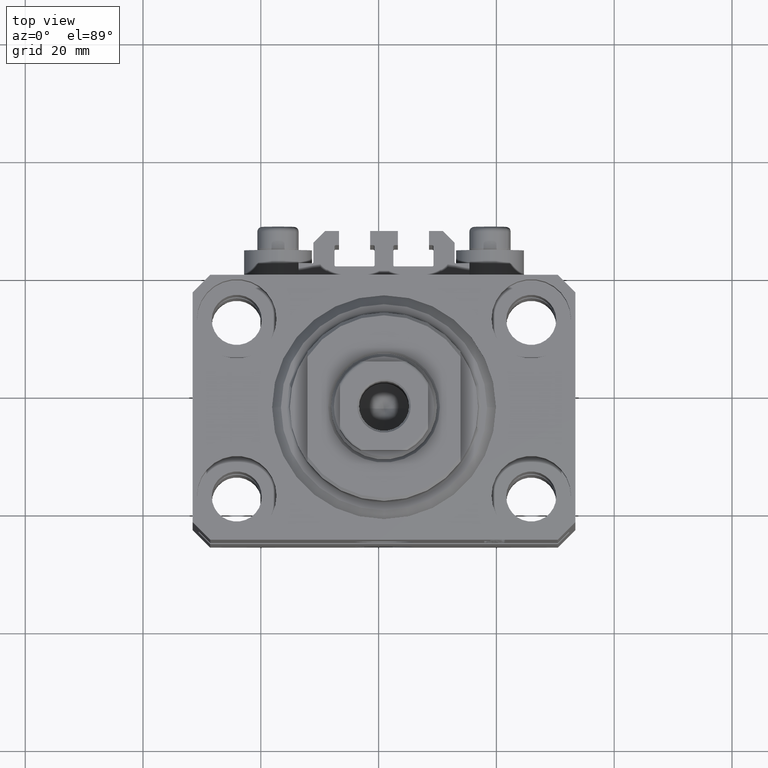
[diagram: clean part render]
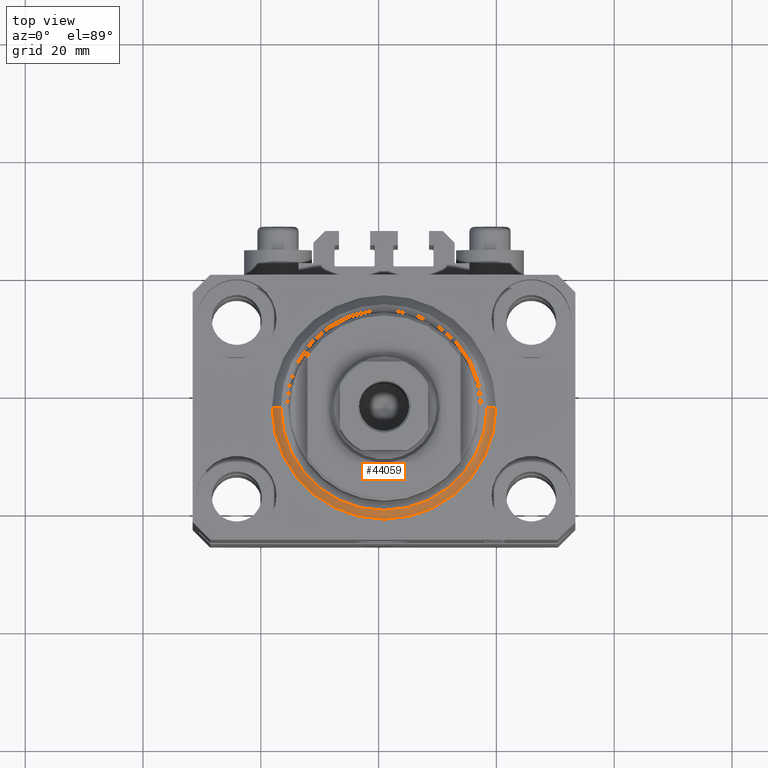
[diagram: same view with one face highlighted and labeled with its STEP entity id]
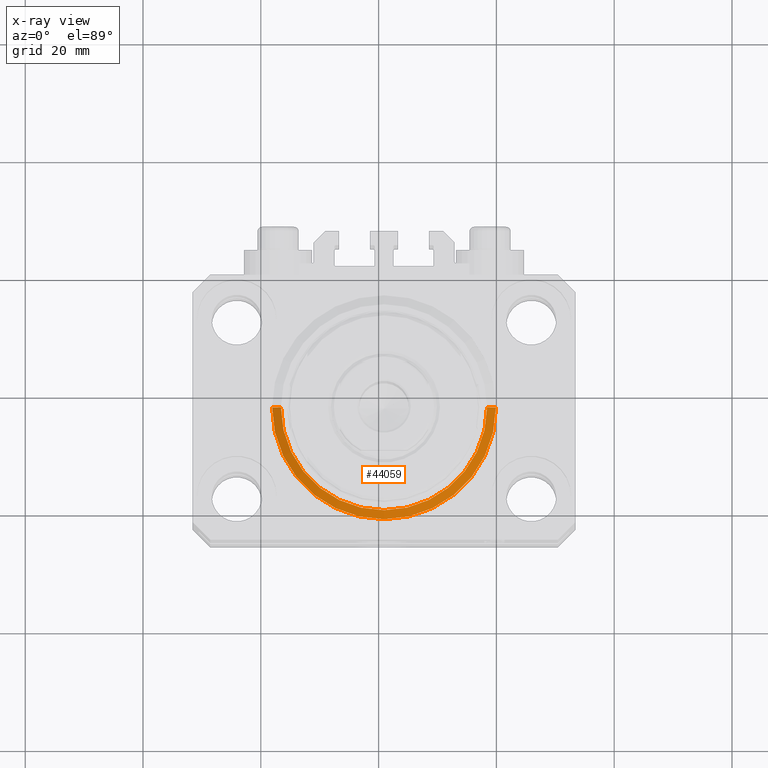
[diagram: x-ray of the same camera — body ghosted, the highlighted face saturated]
A machine part, top view. The second image highlights one B-rep face of the part: STEP entity #44059.
The next image is the same camera in x-ray: the body ghosted, the highlighted face saturated — about 0% of this face is hidden behind the body in this view.
In plain terms, the highlighted conical surface has half-angle 45 deg.
Its self-contained STEP definition (entity closure, byte-faithful):
#2292 = DIRECTION ( 'NONE',  ( -0.000000000000000000, -0.000000000000000000, 1.000000000000000000 ) ) ;
#2762 = CARTESIAN_POINT ( 'NONE',  ( 0.000000000000000000, 0.000000000000000000, 1.500000000000004885 ) ) ;
#2998 = DIRECTION ( 'NONE',  ( 1.000000000000000000, 0.000000000000000000, 0.000000000000000000 ) ) ;
#4278 = DIRECTION ( 'NONE',  ( -0.000000000000000000, -0.000000000000000000, 1.000000000000000000 ) ) ;
#6675 = ORIENTED_EDGE ( 'NONE', *, *, #24929, .T. ) ;
#6688 = LINE ( 'NONE', #25066, #46738 ) ;
#6924 = DIRECTION ( 'NONE',  ( 0.7071067811865483499, 0.000000000000000000, 0.7071067811865467956 ) ) ;
#7435 = CARTESIAN_POINT ( 'NONE',  ( 0.000000000000000000, 0.000000000000000000, 0.000000000000000000 ) ) ;
#7911 = DIRECTION ( 'NONE',  ( -0.7071067811865483499, 8.659560562354943952E-17, 0.7071067811865467956 ) ) ;
#12624 = AXIS2_PLACEMENT_3D ( 'NONE', #36952, #4278, #33395 ) ;
#13476 = CIRCLE ( 'NONE', #31785, 17.49999999999999289 ) ;
#14116 = DIRECTION ( 'NONE',  ( -0.000000000000000000, -0.000000000000000000, -1.000000000000000000 ) ) ;
#14818 = DIRECTION ( 'NONE',  ( 1.000000000000000000, 0.000000000000000000, 0.000000000000000000 ) ) ;
#18523 = ORIENTED_EDGE ( 'NONE', *, *, #28174, .F. ) ;
#19608 = VERTEX_POINT ( 'NONE', #24322 ) ;
#22107 = CONICAL_SURFACE ( 'NONE', #29730, 19.00000000000000000, 0.7853981633974492782 ) ;
#22706 = LINE ( 'NONE', #44653, #39999 ) ;
#22934 = VERTEX_POINT ( 'NONE', #35964 ) ;
#24322 = CARTESIAN_POINT ( 'NONE',  ( -19.00000000000000000, 0.000000000000000000, 1.500000000000004885 ) ) ;
#24588 = CARTESIAN_POINT ( 'NONE',  ( 19.00000000000000000, 2.326828918379970970E-15, 1.500000000000004885 ) ) ;
#24929 = EDGE_CURVE ( 'NONE', #22934, #45285, #6688, .T. ) ;
#25066 = CARTESIAN_POINT ( 'NONE',  ( 19.00000000000000000, 0.000000000000000000, 1.500000000000004885 ) ) ;
#27851 = CIRCLE ( 'NONE', #12624, 19.00000000000000000 ) ;
#28174 = EDGE_CURVE ( 'NONE', #44954, #19608, #22706, .T. ) ;
#28872 = ORIENTED_EDGE ( 'NONE', *, *, #37267, .F. ) ;
#29730 = AXIS2_PLACEMENT_3D ( 'NONE', #2762, #2292, #2998 ) ;
#31785 = AXIS2_PLACEMENT_3D ( 'NONE', #7435, #14116, #14818 ) ;
#32109 = CARTESIAN_POINT ( 'NONE',  ( -17.49999999999999289, 2.234980408443919215E-15, 0.000000000000000000 ) ) ;
#33395 = DIRECTION ( 'NONE',  ( 1.000000000000000000, 0.000000000000000000, 0.000000000000000000 ) ) ;
#34260 = EDGE_CURVE ( 'NONE', #19608, #45285, #27851, .T. ) ;
#35964 = CARTESIAN_POINT ( 'NONE',  ( 17.49999999999999289, 0.000000000000000000, 0.000000000000000000 ) ) ;
#36952 = CARTESIAN_POINT ( 'NONE',  ( 0.000000000000000000, 0.000000000000000000, 1.500000000000004885 ) ) ;
#37267 = EDGE_CURVE ( 'NONE', #22934, #44954, #13476, .T. ) ;
#39259 = ORIENTED_EDGE ( 'NONE', *, *, #34260, .F. ) ;
#39262 = FACE_OUTER_BOUND ( 'NONE', #40356, .T. ) ;
#39999 = VECTOR ( 'NONE', #7911, 1000.000000000000000 ) ;
#40356 = EDGE_LOOP ( 'NONE', ( #18523, #28872, #6675, #39259 ) ) ;
#44059 = ADVANCED_FACE ( 'NONE', ( #39262 ), #22107, .T. ) ;
#44653 = CARTESIAN_POINT ( 'NONE',  ( -19.00000000000000000, 2.326828918379970970E-15, 1.500000000000004885 ) ) ;
#44954 = VERTEX_POINT ( 'NONE', #32109 ) ;
#45285 = VERTEX_POINT ( 'NONE', #24588 ) ;
#46738 = VECTOR ( 'NONE', #6924, 1000.000000000000000 ) ;